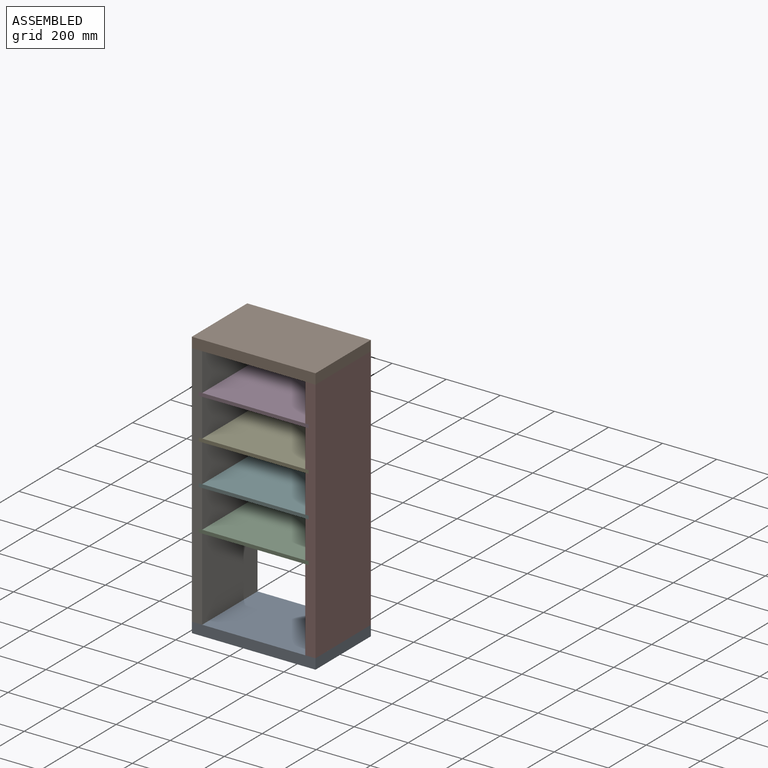
[diagram: assembled view]
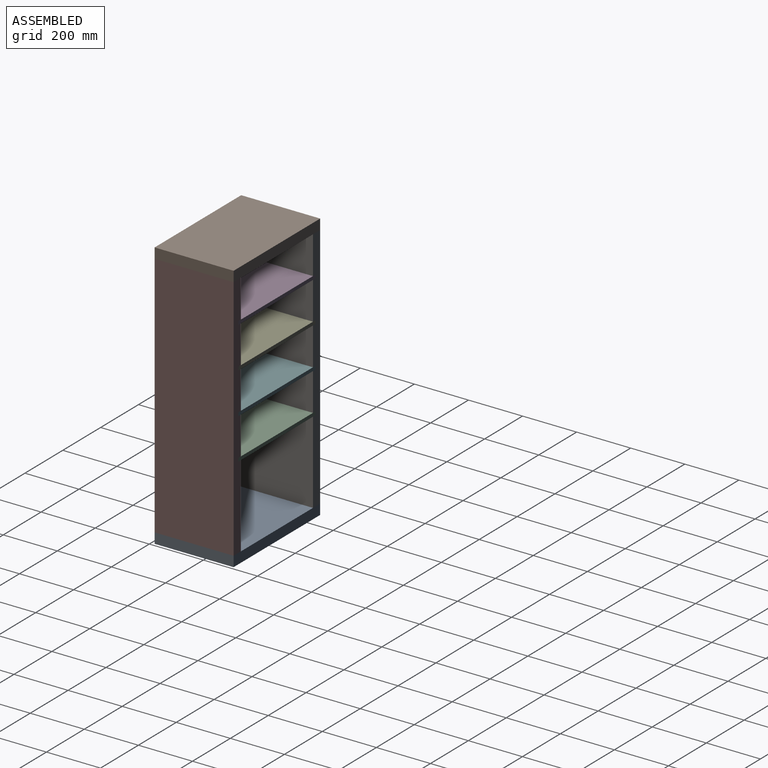
[diagram: assembled view, second angle]
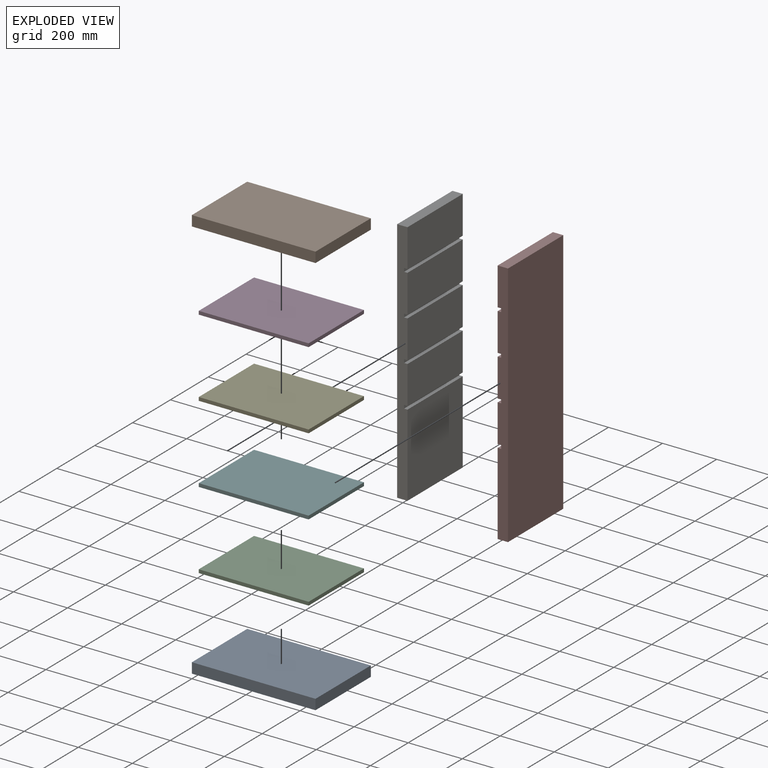
[diagram: exploded view]
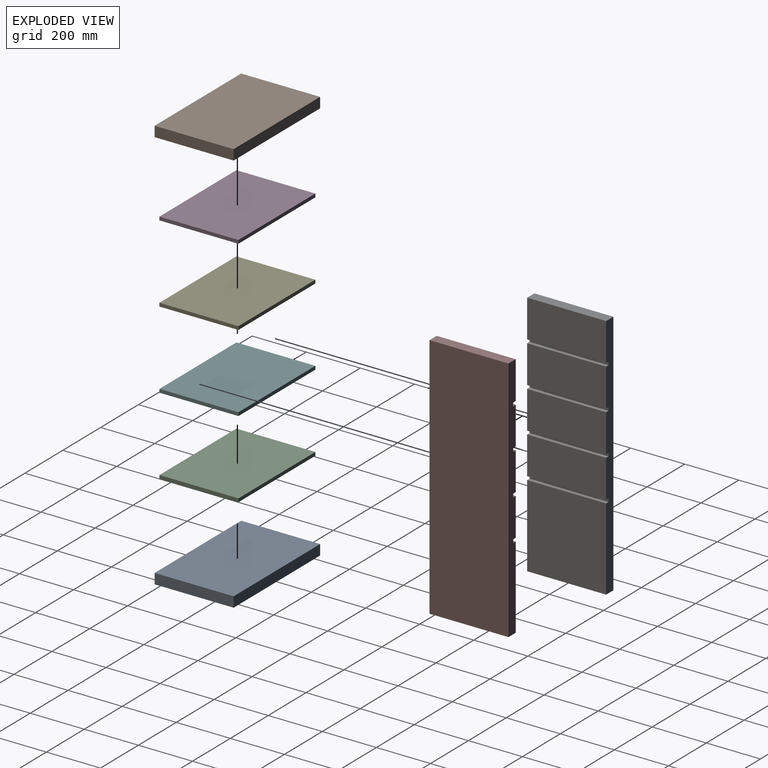
[diagram: exploded view, second angle]
FCSTD DOCUMENT  (FreeCAD 1.0R38642 (Git))
Label: dpstand
License: All rights reserved
LicenseURL: https://en.wikipedia.org/wiki/All_rights_reserved
objects: App::FeaturePython×9, App::Link×8, Part::Box×3, Sketcher::SketchObject×1, Part::Extrusion×1, Part::Cut×1, Assembly::JointGroup×1, Assembly::AssemblyObject×1, Part::Cylinder×1
note: 8 computed .brp shape members not serialized (recipe doc carries the construction recipe); baked Part::Feature solids carry a one-line shape summary decoded from their .brp

FEATURE [Part::Box] Box  label="wall"
  AttacherType = Attacher::AttachEngine3D
  Height = 914.4
  Length = 38.1
  Width = 292.1
FEATURE [Part::Box] Box001  label="shelf"
  AttacherType = Attacher::AttachEngine3D
  Height = 12.7
  Length = 406.4
  Width = 292.1
FEATURE [Part::Box] Box002  label="floor/top"
  AttacherType = Attacher::AttachEngine3D
  Height = 38.1
  Length = 457.2
  Width = 292.1
FEATURE [Sketcher::SketchObject] Sketch
  ArcFitTolerance = 1e-06
  AttachmentSupport = -> [Box]
  FullyConstrained = true
  MakeInternals = false
  MapMode = 5
  Placement = pos=(0,0,0) rot=(1,0,0;1.5708rad)
  sketch-geometry (16):
    g0: LineSegment StartX=152.4 StartY=774.7 StartZ=0 EndX=25.4 EndY=774.7 EndZ=0
    g1: LineSegment StartX=25.4 StartY=774.7 StartZ=0 EndX=25.4 EndY=762 EndZ=0
    g2: LineSegment StartX=25.4 StartY=762 StartZ=0 EndX=152.4 EndY=762 EndZ=0
    g3: LineSegment StartX=152.4 StartY=762 StartZ=0 EndX=152.4 EndY=774.7 EndZ=0
    g4: LineSegment StartX=152.4 StartY=622.3 StartZ=0 EndX=25.4 EndY=622.3 EndZ=0
    g5: LineSegment StartX=25.4 StartY=622.3 StartZ=0 EndX=25.4 EndY=609.6 EndZ=0
    g6: LineSegment StartX=25.4 StartY=609.6 StartZ=0 EndX=152.4 EndY=609.6 EndZ=0
    g7: LineSegment StartX=152.4 StartY=609.6 StartZ=0 EndX=152.4 EndY=622.3 EndZ=0
    g8: LineSegment StartX=152.4 StartY=469.9 StartZ=0 EndX=25.4 EndY=469.9 EndZ=0
    g9: LineSegment StartX=25.4 StartY=469.9 StartZ=0 EndX=25.4 EndY=457.2 EndZ=0
    g10: LineSegment StartX=25.4 StartY=457.2 StartZ=0 EndX=152.4 EndY=457.2 EndZ=0
    g11: LineSegment StartX=152.4 StartY=457.2 StartZ=0 EndX=152.4 EndY=469.9 EndZ=0
    g12: LineSegment StartX=25.4 StartY=317.5 StartZ=0 EndX=25.4 EndY=304.8 EndZ=0
    g13: LineSegment StartX=25.4 StartY=304.8 StartZ=0 EndX=152.4 EndY=304.8 EndZ=0
    g14: LineSegment StartX=152.4 StartY=304.8 StartZ=0 EndX=152.4 EndY=317.5 EndZ=0
    g15: LineSegment StartX=152.4 StartY=317.5 StartZ=0 EndX=25.4 EndY=317.5 EndZ=0
  constraints (45):
    c: Coincident(g0,g1)
    c: Coincident(g1,g2)
    c: Coincident(g2,g3)
    c: Coincident(g3,g0)
    c: Horizontal(g0)
    c: Horizontal(g2)
    c: Vertical(g1)
    c: Vertical(g3)
    c: Coincident(g4,g5)
    c: Coincident(g5,g6)
    c: Coincident(g6,g7)
    c: Coincident(g7,g4)
    c: Horizontal(g4)
    c: Horizontal(g6)
    c: Vertical(g7)
    c: Coincident(g8,g9)
    c: Coincident(g9,g10)
    c: Coincident(g10,g11)
    c: Coincident(g11,g8)
    c: Horizontal(g8)
    c: Horizontal(g10)
    c: Vertical(g11)
    c: Coincident(g12,g13)
    c: Coincident(g13,g14)
    c: Coincident(g14,g15)
    c: Coincident(g15,g12)
    c: Vertical(g14)
    c: Horizontal(g13)
    c: Horizontal(g15)
    c: Equal(g8,g15)
    c: Equal(g4,g8)
    c: Equal(g0,g4)
    c: Equal(g3,g7)
    c: Equal(g7,g11)
    c: Equal(g11,g14)
    c: DistanceY(g3,g3) = 12.7
    c: DistanceX(g0,g0) = 127
    c: Tangent(g1,g5)
    c: Tangent(g5,g9)
    c: Tangent(g9,g12)
    c: Distance(g8,g15) = 152.4
    c: Distance(g4,g8) = 152.4
    c: Distance(g4,g0) = 152.4
    c: Distance(g1,g-2) = 25.4
    c: Distance(g-1,g13) = 304.8
FEATURE [Part::Extrusion] Extrude  label="dados"
  Base = -> Sketch
  Dir = (0,-1,2e-16)
  DirMode = 2
  FaceMakerClass = Part::FaceMakerBullseye
  FaceMakerMode = 3
  LengthFwd = 100
  LengthRev = 400
  Solid = true
  Symmetric = false
FEATURE [Part::Cut] Cut  label="wall, dadod"
  Base = -> Box
  Tool = -> Extrude
FEATURE [App::Link] floor_top  label="floor/top001"
  LinkedObject = -> Box002
FEATURE [App::Link] floor_top001  label="floor/top002"
  LinkPlacement = pos=(0,0,952.5) rot=(0,0,1;0rad)
  LinkedObject = -> Box002
  Placement = pos=(0,0,952.5) rot=(0,0,1;0rad)
FEATURE [App::Link] wall__dadod  label="wall, dadod001"
  LinkPlacement = pos=(0,0,38.1) rot=(0,0,1;0rad)
  LinkedObject = -> Cut
  Placement = pos=(0,0,38.1) rot=(0,0,1;0rad)
FEATURE [App::Link] wall__dadod001  label="wall, dadod002"
  LinkPlacement = pos=(457.2,292.1,38.1) rot=(0,0,1;3.14159rad)
  LinkedObject = -> Cut
  Placement = pos=(457.2,292.1,38.1) rot=(0,0,1;3.14159rad)
FEATURE [App::Link] shelf  label="shelf001"
  LinkPlacement = pos=(25.4,0,342.9) rot=(0,0,1;0rad)
  LinkedObject = -> Box001
  Placement = pos=(25.4,0,342.9) rot=(0,0,1;0rad)
FEATURE [App::Link] shelf001  label="shelf002"
  LinkPlacement = pos=(25.4,0,800.1) rot=(0,0,1;0rad)
  LinkedObject = -> Box001
  Placement = pos=(25.4,0,800.1) rot=(0,0,1;0rad)
FEATURE [App::Link] shelf002  label="shelf003"
  LinkPlacement = pos=(25.4,0,647.7) rot=(0,0,1;0rad)
  LinkedObject = -> Box001
  Placement = pos=(25.4,0,647.7) rot=(0,0,1;0rad)
FEATURE [App::Link] shelf003  label="shelf004"
  LinkPlacement = pos=(25.4,0,495.3) rot=(0,0,1;0rad)
  LinkedObject = -> Box001
  Placement = pos=(25.4,0,495.3) rot=(0,0,1;0rad)
FEATURE [App::FeaturePython] GroundedJoint  # Assembly grounded joint (typed FeaturePython)
  ObjectToGround = -> floor_top
FEATURE [App::FeaturePython] Fixed  # Assembly joint (typed FeaturePython)
  Activated = true
  AngleMax = 0
  AngleMin = 0
  Detach1 = false
  Detach2 = false
  Distance = 0
  Distance2 = 0
  EnableAngleMax = false
  EnableAngleMin = false
  EnableLengthMax = false
  EnableLengthMin = false
  JointType = 0 (Fixed)
  LengthMax = 0
  LengthMin = 0
  Offset = (0,0,0)
  Placement1 = pos=(0,0,0) rot=(0.57735,0.57735,0.57735;4.18879rad)
  Placement2 = pos=(0,0,38.1) rot=(0.57735,0.57735,0.57735;4.18879rad)
  Reference1 = -> Assembly [wall__dadod.Edge4,wall__dadod.Vertex2]
  Reference2 = -> Assembly [floor_top.Edge2,floor_top.Vertex1]
  Rotation = 0
FEATURE [App::FeaturePython] Fixed001  # Assembly joint (typed FeaturePython)
  Activated = true
  AngleMax = 0
  AngleMin = 0
  Detach1 = false
  Detach2 = false
  Distance = 0
  Distance2 = 0
  EnableAngleMax = false
  EnableAngleMin = false
  EnableLengthMax = false
  EnableLengthMin = false
  JointType = 0 (Fixed)
  LengthMax = 0
  LengthMin = 0
  Offset = (0,0,0)
  Placement2 = pos=(0,0,914.4) rot=(0,0,1;0rad)
  Reference1 = -> Assembly [floor_top001.Vertex2,floor_top001.Vertex2]
  Reference2 = -> Assembly [wall__dadod.Vertex1,wall__dadod.Vertex1]
  Rotation = 0
FEATURE [App::FeaturePython] Fixed003  # Assembly joint (typed FeaturePython)
  Activated = true
  AngleMax = 0
  AngleMin = 0
  Detach1 = false
  Detach2 = false
  Distance = 0
  Distance2 = 0
  EnableAngleMax = false
  EnableAngleMin = false
  EnableLengthMax = false
  EnableLengthMin = false
  JointType = 0 (Fixed)
  LengthMax = 0
  LengthMin = 0
  Offset = (0,0,0)
  Placement2 = pos=(25.4,0,762) rot=(0,0,1;0rad)
  Reference1 = -> Assembly [shelf001.Edge1,shelf001.Vertex2]
  Reference2 = -> Assembly [wall__dadod.Vertex19,wall__dadod.Vertex19]
  Rotation = 0
FEATURE [App::FeaturePython] Fixed004  # Assembly joint (typed FeaturePython)
  Activated = true
  AngleMax = 0
  AngleMin = 0
  Detach1 = false
  Detach2 = false
  Distance = 0
  Distance2 = 0
  EnableAngleMax = false
  EnableAngleMin = false
  EnableLengthMax = false
  EnableLengthMin = false
  JointType = 0 (Fixed)
  LengthMax = 0
  LengthMin = 0
  Offset = (0,0,0)
  Placement2 = pos=(25.4,0,609.6) rot=(0,0,1;0rad)
  Reference1 = -> Assembly [shelf002.Vertex2,shelf002.Vertex2]
  Reference2 = -> Assembly [wall__dadod.Vertex15,wall__dadod.Vertex15]
  Rotation = 0
FEATURE [App::FeaturePython] Fixed005  # Assembly joint (typed FeaturePython)
  Activated = true
  AngleMax = 0
  AngleMin = 0
  Detach1 = false
  Detach2 = false
  Distance = 0
  Distance2 = 0
  EnableAngleMax = false
  EnableAngleMin = false
  EnableLengthMax = false
  EnableLengthMin = false
  JointType = 0 (Fixed)
  LengthMax = 0
  LengthMin = 0
  Offset = (0,0,0)
  Placement2 = pos=(25.4,0,457.2) rot=(0,0,1;0rad)
  Reference1 = -> Assembly [shelf003.Vertex2,shelf003.Vertex2]
  Reference2 = -> Assembly [wall__dadod.Vertex11,wall__dadod.Vertex11]
  Rotation = 0
FEATURE [App::FeaturePython] Slider  # Assembly joint (typed FeaturePython)
  Activated = true
  AngleMax = 0
  AngleMin = 0
  Detach1 = false
  Detach2 = false
  Distance = 0
  Distance2 = 0
  EnableAngleMax = false
  EnableAngleMin = false
  EnableLengthMax = false
  EnableLengthMin = false
  JointType = 3 (Slider)
  LengthMax = 0
  LengthMin = 0
  Offset = (0,0,0)
  Placement1 = pos=(0,146.05,914.4) rot=(0.57735,0.57735,0.57735;4.18879rad)
  Placement2 = pos=(457.2,146.05,0) rot=(0.57735,0.57735,0.57735;4.18879rad)
  Reference1 = -> Assembly [wall__dadod001.Edge2,wall__dadod001.Edge2]
  Reference2 = -> Assembly [floor_top001.Edge8,floor_top001.Edge8]
  Rotation = 0
FEATURE [App::FeaturePython] Distance  # Assembly joint (typed FeaturePython)
  Activated = true
  AngleMax = 0
  AngleMin = 0
  Detach1 = false
  Detach2 = false
  Distance = 0
  Distance2 = 0
  EnableAngleMax = false
  EnableAngleMin = false
  EnableLengthMax = false
  EnableLengthMin = false
  JointType = 5 (Distance)
  LengthMax = 0
  LengthMin = 0
  Offset = (0,0,0)
  Placement1 = pos=(18.8104,292.1,455.642) rot=(-0.57735,-0.57735,-0.57735;2.0944rad)
  Placement2 = pos=(228.6,0,19.05) rot=(0.57735,0.57735,0.57735;4.18879rad)
  Reference1 = -> Assembly [wall__dadod001.Face4,wall__dadod001.Vertex27]
  Reference2 = -> Assembly [floor_top001.Face3,floor_top001.Face3]
  Rotation = 0
FEATURE [App::FeaturePython] Fixed006  # Assembly joint (typed FeaturePython)
  Activated = true
  AngleMax = 0
  AngleMin = 0
  Detach1 = false
  Detach2 = false
  Distance = 0
  Distance2 = 0
  EnableAngleMax = false
  EnableAngleMin = false
  EnableLengthMax = false
  EnableLengthMin = false
  JointType = 0 (Fixed)
  LengthMax = 0
  LengthMin = 0
  Offset = (0,0,0)
  Placement1 = pos=(0,0,12.7) rot=(0,0,1;0rad)
  Placement2 = pos=(25.4,0,317.5) rot=(0,0,1;0rad)
  Reference1 = -> Assembly [shelf.Vertex1,shelf.Vertex1]
  Reference2 = -> Assembly [wall__dadod.Vertex8,wall__dadod.Vertex8]
  Rotation = 0
FEATURE [Assembly::JointGroup] Joints
  Group = -> [GroundedJoint,Fixed,Fixed001,Fixed003,Fixed004,Fixed005,Slider,Distance,Fixed006]
FEATURE [Assembly::AssemblyObject] Assembly
  Group = -> [Joints,floor_top,floor_top001,wall__dadod,wall__dadod001,shelf,shelf001,shelf002,shelf003,GroundedJoint,Fixed,Fixed001,Fixed003,Fixed004,Fixed005,Slider,Distance,Fixed006]
  Origin = -> Origin
  Type = Assembly
FEATURE [Part::Cylinder] Cylinder  label="dowel pin"
  Angle = 360
  AttacherType = Attacher::AttachEngine3D
  FirstAngle = 0
  Height = 38.1
  Radius = 4.7625
  SecondAngle = 0
